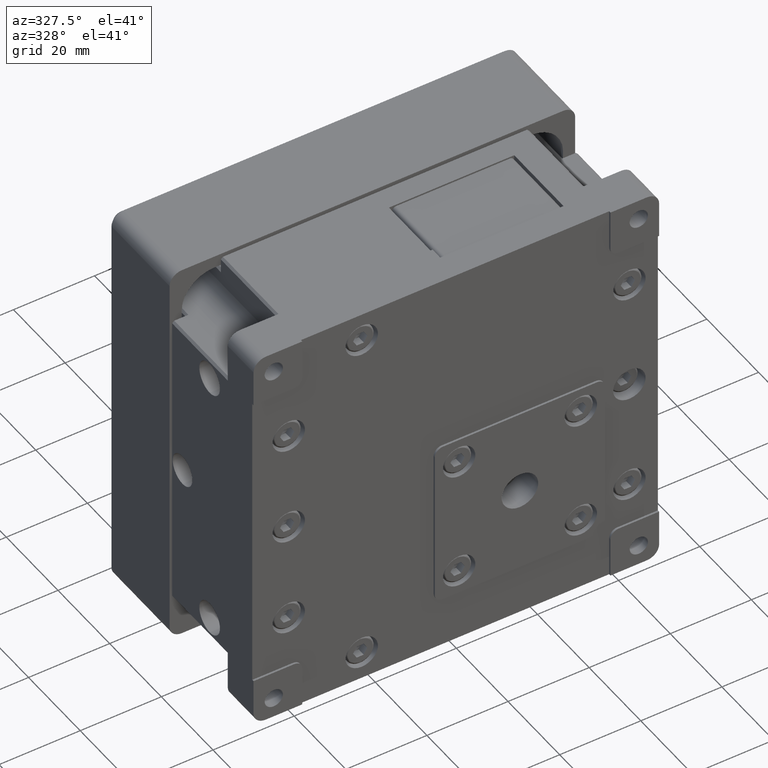
[diagram: clean part render]
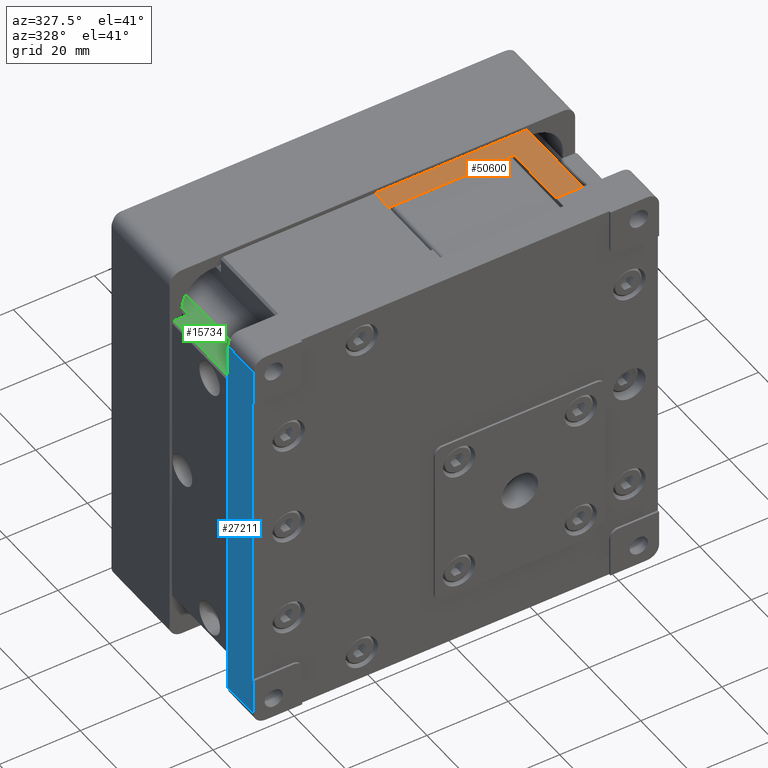
[diagram: same view with three faces highlighted in distinct colors, each labeled with its STEP entity id]
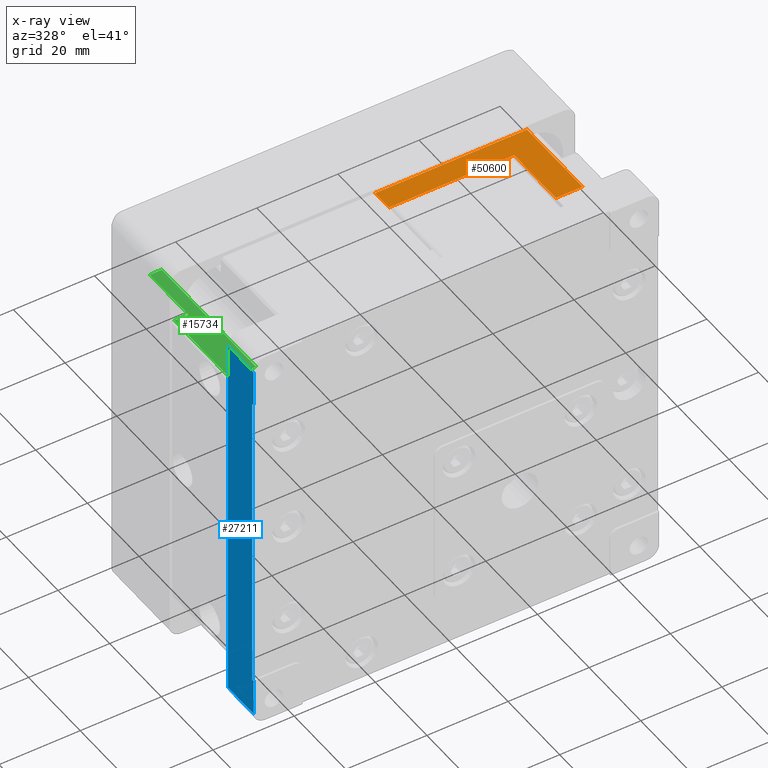
[diagram: x-ray of the same camera — body ghosted, the three highlighted faces saturated]
A machine part, auxiliary view with three faces highlighted in distinct colors.
The next image is the same camera in x-ray (body ghosted, the three faces saturated) — at least one of them is partly hidden behind the body in this view.
Their STEP definitions:

[orange] entity #50600 — the highlighted planar face has unit normal (0, 0, -1).
#64 = ORIENTED_EDGE ( 'NONE', *, *, #8549, .F. ) ;
#657 = PLANE ( 'NONE',  #41878 ) ;
#887 = LINE ( 'NONE', #34610, #28267 ) ;
#2099 = CARTESIAN_POINT ( 'NONE',  ( 1.897353801849632760E-15, 158.3033988749895116, 50.00000000000000711 ) ) ;
#2820 = CARTESIAN_POINT ( 'NONE',  ( 6.938893903907228378E-15, 31.49999999999997158, 50.00000000000000711 ) ) ;
#3792 = CARTESIAN_POINT ( 'NONE',  ( 37.49999999999992184, 9.999999999999939604, 50.00000000000000711 ) ) ;
#3798 = VECTOR ( 'NONE', #31357, 1000.000000000000000 ) ;
#5422 = CARTESIAN_POINT ( 'NONE',  ( 6.938893903907228378E-15, 26.10000000000001208, 50.00000000000000711 ) ) ;
#5424 = LINE ( 'NONE', #31625, #21392 ) ;
#5442 = EDGE_CURVE ( 'NONE', #15842, #53452, #10761, .T. ) ;
#5955 = CARTESIAN_POINT ( 'NONE',  ( 6.938893903907227589E-15, 26.10000000000001208, 50.00000000000000000 ) ) ;
#8549 = EDGE_CURVE ( 'NONE', #53452, #25794, #24727, .T. ) ;
#10761 = LINE ( 'NONE', #2099, #49744 ) ;
#12935 = ORIENTED_EDGE ( 'NONE', *, *, #56885, .F. ) ;
#13230 = VERTEX_POINT ( 'NONE', #34842 ) ;
#14297 = ORIENTED_EDGE ( 'NONE', *, *, #29290, .T. ) ;
#14638 = DIRECTION ( 'NONE',  ( -1.000000000000000000, 0.000000000000000000, -0.000000000000000000 ) ) ;
#15842 = VERTEX_POINT ( 'NONE', #5955 ) ;
#19227 = LINE ( 'NONE', #5422, #49409 ) ;
#20886 = CARTESIAN_POINT ( 'NONE',  ( 5.615953887530344880E-15, 31.49999999999997868, 49.99999999999998579 ) ) ;
#21392 = VECTOR ( 'NONE', #49724, 1000.000000000000000 ) ;
#21402 = DIRECTION ( 'NONE',  ( 0.000000000000000000, 0.000000000000000000, -1.000000000000000000 ) ) ;
#24727 = LINE ( 'NONE', #2820, #30853 ) ;
#25794 = VERTEX_POINT ( 'NONE', #37245 ) ;
#28267 = VECTOR ( 'NONE', #47810, 1000.000000000000000 ) ;
#29290 = EDGE_CURVE ( 'NONE', #46491, #52609, #39979, .T. ) ;
#29536 = ORIENTED_EDGE ( 'NONE', *, *, #5442, .F. ) ;
#29542 = ORIENTED_EDGE ( 'NONE', *, *, #56460, .F. ) ;
#30317 = FACE_OUTER_BOUND ( 'NONE', #41761, .T. ) ;
#30853 = VECTOR ( 'NONE', #43948, 1000.000000000000000 ) ;
#31357 = DIRECTION ( 'NONE',  ( 1.000000000000000000, 0.000000000000000000, 0.000000000000000000 ) ) ;
#31625 = CARTESIAN_POINT ( 'NONE',  ( 30.89999999999999858, 158.3033988749895116, 50.00000000000000711 ) ) ;
#34610 = CARTESIAN_POINT ( 'NONE',  ( 37.49999999999992184, 158.3033988749895116, 50.00000000000000711 ) ) ;
#34842 = CARTESIAN_POINT ( 'NONE',  ( 30.89999999999999858, 26.10000000000000142, 50.00000000000000000 ) ) ;
#36347 = DIRECTION ( 'NONE',  ( 0.000000000000000000, 1.000000000000000000, 0.000000000000000000 ) ) ;
#37245 = CARTESIAN_POINT ( 'NONE',  ( 37.49999999999992184, 31.49999999999994316, 50.00000000000000711 ) ) ;
#39501 = CARTESIAN_POINT ( 'NONE',  ( 6.938893903907228378E-15, 158.3033988749895116, 50.00000000000000711 ) ) ;
#39979 = LINE ( 'NONE', #45432, #3798 ) ;
#40786 = EDGE_CURVE ( 'NONE', #46491, #13230, #5424, .T. ) ;
#41761 = EDGE_LOOP ( 'NONE', ( #64, #29536, #12935, #55013, #14297, #29542 ) ) ;
#41878 = AXIS2_PLACEMENT_3D ( 'NONE', #39501, #21402, #52754 ) ;
#43948 = DIRECTION ( 'NONE',  ( 1.000000000000000000, -0.000000000000000000, 0.000000000000000000 ) ) ;
#45432 = CARTESIAN_POINT ( 'NONE',  ( 0.000000000000000000, 10.00000000000000000, 50.00000000000000711 ) ) ;
#46491 = VERTEX_POINT ( 'NONE', #52781 ) ;
#47810 = DIRECTION ( 'NONE',  ( -0.000000000000000000, -1.000000000000000000, -0.000000000000000000 ) ) ;
#49409 = VECTOR ( 'NONE', #14638, 1000.000000000000000 ) ;
#49724 = DIRECTION ( 'NONE',  ( 0.000000000000000000, 1.000000000000000000, 0.000000000000000000 ) ) ;
#49744 = VECTOR ( 'NONE', #36347, 1000.000000000000000 ) ;
#50600 = ADVANCED_FACE ( 'NONE', ( #30317 ), #657, .F. ) ;
#52609 = VERTEX_POINT ( 'NONE', #3792 ) ;
#52754 = DIRECTION ( 'NONE',  ( -1.000000000000000000, 0.000000000000000000, -0.000000000000000000 ) ) ;
#52781 = CARTESIAN_POINT ( 'NONE',  ( 30.89999999999999858, 9.999999999999996447, 50.00000000000000711 ) ) ;
#53452 = VERTEX_POINT ( 'NONE', #20886 ) ;
#55013 = ORIENTED_EDGE ( 'NONE', *, *, #40786, .F. ) ;
#56460 = EDGE_CURVE ( 'NONE', #25794, #52609, #887, .T. ) ;
#56885 = EDGE_CURVE ( 'NONE', #13230, #15842, #19227, .T. ) ;

[blue] entity #27211 — the highlighted planar face has unit normal (1, 0, 0).
#143 = DIRECTION ( 'NONE',  ( 0.000000000000000000, 0.000000000000000000, -1.000000000000000000 ) ) ;
#247 = CARTESIAN_POINT ( 'NONE',  ( -50.00000000000000711, 0.5000000000000001110, 38.00000000000000711 ) ) ;
#453 = CARTESIAN_POINT ( 'NONE',  ( -50.00000000000000711, 10.00000000000000000, 47.00000000000000711 ) ) ;
#922 = CARTESIAN_POINT ( 'NONE',  ( -50.00000000000000711, 0.000000000000000000, 47.00000000000000711 ) ) ;
#1548 = FACE_OUTER_BOUND ( 'NONE', #21545, .T. ) ;
#3009 = CARTESIAN_POINT ( 'NONE',  ( -50.00000000000000711, 0.000000000000000000, 50.00000000000000711 ) ) ;
#4218 = VECTOR ( 'NONE', #54860, 1000.000000000000000 ) ;
#4384 = LINE ( 'NONE', #48961, #45270 ) ;
#5511 = VERTEX_POINT ( 'NONE', #40657 ) ;
#5623 = DIRECTION ( 'NONE',  ( -0.000000000000000000, -1.000000000000000000, -0.000000000000000000 ) ) ;
#6209 = CARTESIAN_POINT ( 'NONE',  ( -50.00000000000000711, 10.00000000000000000, -46.99999999999999289 ) ) ;
#6764 = CARTESIAN_POINT ( 'NONE',  ( -50.00000000000000711, 10.00000000000000000, -46.99999999999999289 ) ) ;
#6913 = EDGE_CURVE ( 'NONE', #37325, #42182, #4384, .T. ) ;
#7063 = LINE ( 'NONE', #3009, #4218 ) ;
#8629 = DIRECTION ( 'NONE',  ( 0.000000000000000000, -0.000000000000000000, -1.000000000000000000 ) ) ;
#9828 = VECTOR ( 'NONE', #143, 1000.000000000000000 ) ;
#10694 = CARTESIAN_POINT ( 'NONE',  ( -50.00000000000000711, 0.000000000000000000, -38.00000000000000711 ) ) ;
#13686 = EDGE_CURVE ( 'NONE', #44160, #56306, #13689, .T. ) ;
#13689 = LINE ( 'NONE', #27500, #9828 ) ;
#14782 = CARTESIAN_POINT ( 'NONE',  ( -50.00000000000000711, 10.00000000000000000, 50.00000000000000711 ) ) ;
#16542 = VECTOR ( 'NONE', #8629, 1000.000000000000000 ) ;
#16752 = CARTESIAN_POINT ( 'NONE',  ( -50.00000000000000711, 0.000000000000000000, 38.00000000000000711 ) ) ;
#17876 = EDGE_CURVE ( 'NONE', #5511, #19980, #22841, .T. ) ;
#19024 = ORIENTED_EDGE ( 'NONE', *, *, #28678, .F. ) ;
#19980 = VERTEX_POINT ( 'NONE', #10694 ) ;
#20612 = CARTESIAN_POINT ( 'NONE',  ( -50.00000000000000711, 10.00000000000000000, 38.00000000000000711 ) ) ;
#21545 = EDGE_LOOP ( 'NONE', ( #19024, #40551, #56596, #25444, #35162, #37565, #28425, #45965 ) ) ;
#22153 = CARTESIAN_POINT ( 'NONE',  ( -50.00000000000000711, 0.5000000000000000000, 0.000000000000000000 ) ) ;
#22841 = LINE ( 'NONE', #49859, #44599 ) ;
#23729 = DIRECTION ( 'NONE',  ( 0.000000000000000000, 0.000000000000000000, -1.000000000000000000 ) ) ;
#25444 = ORIENTED_EDGE ( 'NONE', *, *, #6913, .F. ) ;
#26955 = LINE ( 'NONE', #453, #43754 ) ;
#27211 = ADVANCED_FACE ( 'NONE', ( #1548 ), #54218, .F. ) ;
#27500 = CARTESIAN_POINT ( 'NONE',  ( -50.00000000000000711, 0.000000000000000000, 50.00000000000000711 ) ) ;
#27808 = EDGE_CURVE ( 'NONE', #53252, #5511, #51809, .T. ) ;
#28332 = DIRECTION ( 'NONE',  ( 1.000000000000000000, -0.000000000000000000, 0.000000000000000000 ) ) ;
#28425 = ORIENTED_EDGE ( 'NONE', *, *, #17876, .F. ) ;
#28678 = EDGE_CURVE ( 'NONE', #56306, #53252, #51676, .T. ) ;
#32966 = LINE ( 'NONE', #6764, #35347 ) ;
#33459 = AXIS2_PLACEMENT_3D ( 'NONE', #14782, #28332, #23729 ) ;
#35162 = ORIENTED_EDGE ( 'NONE', *, *, #45147, .F. ) ;
#35347 = VECTOR ( 'NONE', #50515, 1000.000000000000000 ) ;
#36186 = EDGE_CURVE ( 'NONE', #42182, #44160, #26955, .T. ) ;
#36334 = DIRECTION ( 'NONE',  ( -0.000000000000000000, -1.000000000000000000, -0.000000000000000000 ) ) ;
#36863 = VERTEX_POINT ( 'NONE', #42945 ) ;
#37325 = VERTEX_POINT ( 'NONE', #6209 ) ;
#37565 = ORIENTED_EDGE ( 'NONE', *, *, #46463, .F. ) ;
#38705 = DIRECTION ( 'NONE',  ( 0.000000000000000000, 1.000000000000000000, 0.000000000000000000 ) ) ;
#39469 = DIRECTION ( 'NONE',  ( -0.000000000000000000, -0.000000000000000000, 1.000000000000000000 ) ) ;
#40551 = ORIENTED_EDGE ( 'NONE', *, *, #13686, .F. ) ;
#40657 = CARTESIAN_POINT ( 'NONE',  ( -50.00000000000000711, 0.5000000000000000000, -38.00000000000000711 ) ) ;
#42182 = VERTEX_POINT ( 'NONE', #50112 ) ;
#42945 = CARTESIAN_POINT ( 'NONE',  ( -50.00000000000000711, 0.000000000000000000, -46.99999999999999289 ) ) ;
#43754 = VECTOR ( 'NONE', #5623, 1000.000000000000000 ) ;
#44160 = VERTEX_POINT ( 'NONE', #922 ) ;
#44599 = VECTOR ( 'NONE', #36334, 1000.000000000000000 ) ;
#45147 = EDGE_CURVE ( 'NONE', #36863, #37325, #32966, .T. ) ;
#45270 = VECTOR ( 'NONE', #39469, 1000.000000000000000 ) ;
#45965 = ORIENTED_EDGE ( 'NONE', *, *, #27808, .F. ) ;
#46032 = VECTOR ( 'NONE', #38705, 1000.000000000000000 ) ;
#46463 = EDGE_CURVE ( 'NONE', #19980, #36863, #7063, .T. ) ;
#48961 = CARTESIAN_POINT ( 'NONE',  ( -50.00000000000000711, 10.00000000000000000, 50.00000000000000711 ) ) ;
#49859 = CARTESIAN_POINT ( 'NONE',  ( -50.00000000000000711, 0.5000000000000000000, -38.00000000000000711 ) ) ;
#50112 = CARTESIAN_POINT ( 'NONE',  ( -50.00000000000000711, 10.00000000000000000, 47.00000000000000711 ) ) ;
#50515 = DIRECTION ( 'NONE',  ( 0.000000000000000000, 1.000000000000000000, 0.000000000000000000 ) ) ;
#51676 = LINE ( 'NONE', #20612, #46032 ) ;
#51809 = LINE ( 'NONE', #22153, #16542 ) ;
#53252 = VERTEX_POINT ( 'NONE', #247 ) ;
#54218 = PLANE ( 'NONE',  #33459 ) ;
#54860 = DIRECTION ( 'NONE',  ( 0.000000000000000000, 0.000000000000000000, -1.000000000000000000 ) ) ;
#56306 = VERTEX_POINT ( 'NONE', #16752 ) ;
#56596 = ORIENTED_EDGE ( 'NONE', *, *, #36186, .F. ) ;

[green] entity #15734 — the highlighted planar face has unit normal (0, 0, -1).
#90 = VECTOR ( 'NONE', #10416, 1000.000000000000000 ) ;
#2590 = LINE ( 'NONE', #37675, #38142 ) ;
#5614 = CARTESIAN_POINT ( 'NONE',  ( -49.49999999999998579, 31.49999999999999289, 37.99999999999995026 ) ) ;
#8080 = VECTOR ( 'NONE', #23910, 1000.000000000000000 ) ;
#9525 = LINE ( 'NONE', #31395, #29080 ) ;
#9856 = ORIENTED_EDGE ( 'NONE', *, *, #31831, .T. ) ;
#10134 = VERTEX_POINT ( 'NONE', #5614 ) ;
#10274 = CARTESIAN_POINT ( 'NONE',  ( -38.00000000000000000, -6.970562748477163950, 37.99999999999995026 ) ) ;
#10416 = DIRECTION ( 'NONE',  ( 0.000000000000000000, 1.000000000000000000, 0.000000000000000000 ) ) ;
#11853 = CARTESIAN_POINT ( 'NONE',  ( -43.00000000000000000, -6.970562748477163950, 37.99999999999995026 ) ) ;
#14598 = FACE_OUTER_BOUND ( 'NONE', #30313, .T. ) ;
#15734 = ADVANCED_FACE ( 'NONE', ( #14598 ), #32151, .F. ) ;
#15959 = CARTESIAN_POINT ( 'NONE',  ( -43.00000000000000000, 10.00000000000000000, 37.99999999999995026 ) ) ;
#17311 = DIRECTION ( 'NONE',  ( 0.000000000000000000, 1.000000000000000000, 0.000000000000000000 ) ) ;
#17952 = CARTESIAN_POINT ( 'NONE',  ( 0.000000000000000000, 10.00000000000000000, 37.99999999999995026 ) ) ;
#18248 = LINE ( 'NONE', #17952, #22828 ) ;
#19606 = CARTESIAN_POINT ( 'NONE',  ( -46.00000000000000711, -6.970562748477163950, 37.99999999999995026 ) ) ;
#20145 = DIRECTION ( 'NONE',  ( 1.000000000000000000, -0.000000000000000000, 0.000000000000000000 ) ) ;
#22828 = VECTOR ( 'NONE', #49321, 1000.000000000000000 ) ;
#23910 = DIRECTION ( 'NONE',  ( 1.000000000000000000, -0.000000000000000000, 0.000000000000000000 ) ) ;
#26224 = CARTESIAN_POINT ( 'NONE',  ( -49.49999999999998579, 9.999999999999975131, 37.99999999999995026 ) ) ;
#26511 = CARTESIAN_POINT ( 'NONE',  ( -43.00000000000000000, 46.50000000000000000, 37.99999999999995026 ) ) ;
#26987 = DIRECTION ( 'NONE',  ( 0.000000000000000000, 0.000000000000000000, -1.000000000000000000 ) ) ;
#28844 = EDGE_CURVE ( 'NONE', #33131, #39056, #30950, .T. ) ;
#29080 = VECTOR ( 'NONE', #17311, 1000.000000000000000 ) ;
#29461 = ORIENTED_EDGE ( 'NONE', *, *, #28844, .F. ) ;
#30156 = ORIENTED_EDGE ( 'NONE', *, *, #53594, .F. ) ;
#30313 = EDGE_LOOP ( 'NONE', ( #31218, #52359, #30156, #9856, #51808, #29461 ) ) ;
#30950 = LINE ( 'NONE', #19606, #90 ) ;
#31218 = ORIENTED_EDGE ( 'NONE', *, *, #45522, .F. ) ;
#31395 = CARTESIAN_POINT ( 'NONE',  ( -49.49999999999998579, -6.970562748477163950, 37.99999999999995026 ) ) ;
#31580 = DIRECTION ( 'NONE',  ( -1.000000000000000000, 0.000000000000000000, -0.000000000000000000 ) ) ;
#31831 = EDGE_CURVE ( 'NONE', #45124, #49832, #52396, .T. ) ;
#31884 = VERTEX_POINT ( 'NONE', #26224 ) ;
#32151 = PLANE ( 'NONE',  #47202 ) ;
#32816 = CARTESIAN_POINT ( 'NONE',  ( -46.00000000000000711, 31.49999999999999289, 37.99999999999995026 ) ) ;
#33131 = VERTEX_POINT ( 'NONE', #32816 ) ;
#35723 = LINE ( 'NONE', #53285, #8080 ) ;
#35858 = EDGE_CURVE ( 'NONE', #31884, #10134, #9525, .T. ) ;
#37675 = CARTESIAN_POINT ( 'NONE',  ( -38.00000000000000000, 31.49999999999999289, 37.99999999999995026 ) ) ;
#38142 = VECTOR ( 'NONE', #20145, 1000.000000000000000 ) ;
#39056 = VERTEX_POINT ( 'NONE', #52418 ) ;
#41967 = VECTOR ( 'NONE', #47780, 1000.000000000000000 ) ;
#45124 = VERTEX_POINT ( 'NONE', #15959 ) ;
#45522 = EDGE_CURVE ( 'NONE', #10134, #33131, #2590, .T. ) ;
#47202 = AXIS2_PLACEMENT_3D ( 'NONE', #10274, #26987, #31580 ) ;
#47780 = DIRECTION ( 'NONE',  ( -0.000000000000000000, 1.000000000000000000, -0.000000000000000000 ) ) ;
#49321 = DIRECTION ( 'NONE',  ( -1.000000000000000000, -0.000000000000000000, -0.000000000000000000 ) ) ;
#49832 = VERTEX_POINT ( 'NONE', #26511 ) ;
#51808 = ORIENTED_EDGE ( 'NONE', *, *, #52843, .F. ) ;
#52359 = ORIENTED_EDGE ( 'NONE', *, *, #35858, .F. ) ;
#52396 = LINE ( 'NONE', #11853, #41967 ) ;
#52418 = CARTESIAN_POINT ( 'NONE',  ( -46.00000000000000711, 46.50000000000001421, 37.99999999999995026 ) ) ;
#52843 = EDGE_CURVE ( 'NONE', #39056, #49832, #35723, .T. ) ;
#53285 = CARTESIAN_POINT ( 'NONE',  ( -38.00000000000000000, 46.50000000000000711, 37.99999999999995026 ) ) ;
#53594 = EDGE_CURVE ( 'NONE', #45124, #31884, #18248, .T. ) ;